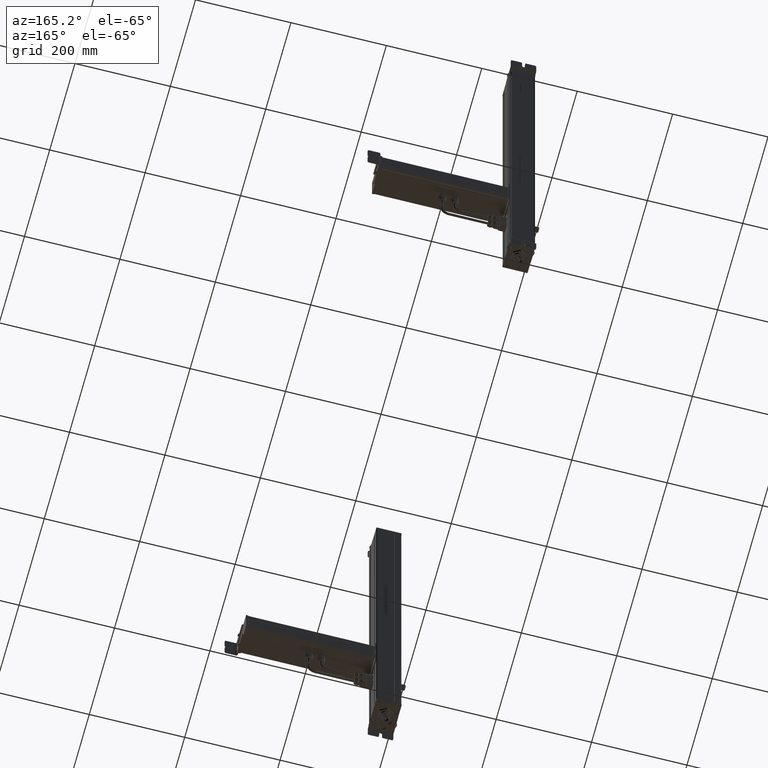
[diagram: clean part render]
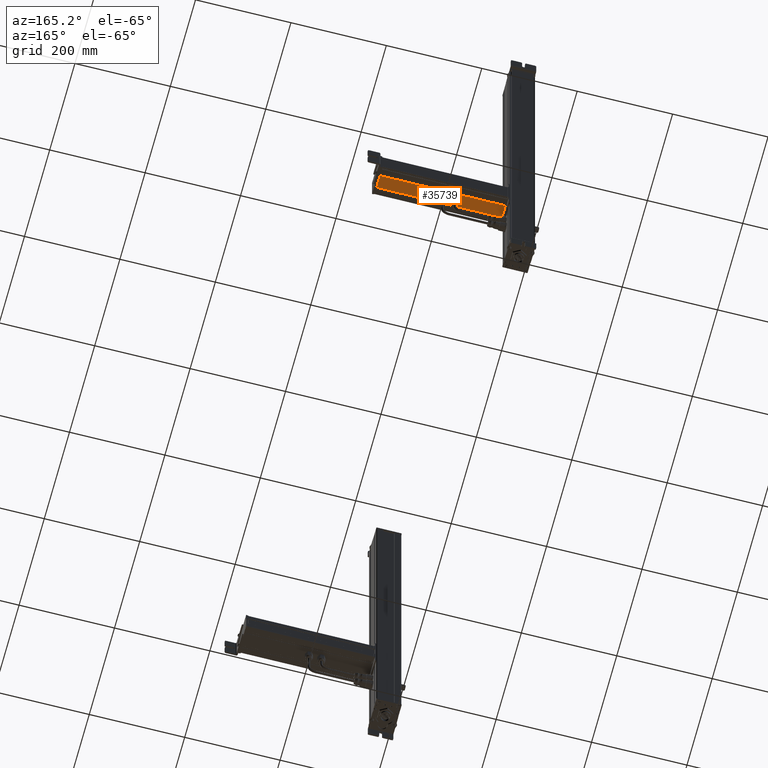
[diagram: same view with one face highlighted and labeled with its STEP entity id]
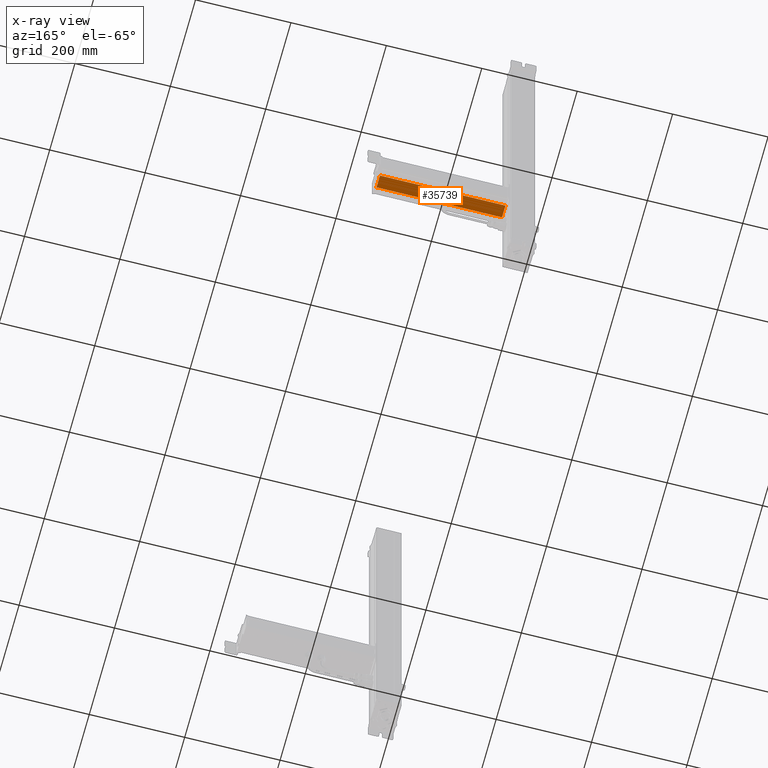
[diagram: x-ray of the same camera — body ghosted, the highlighted face saturated]
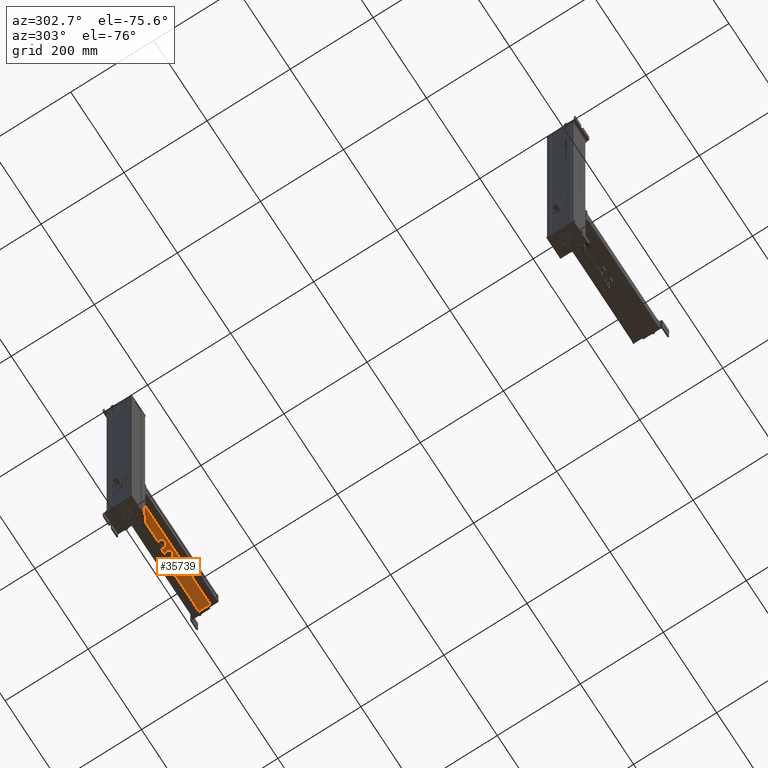
[diagram: same view with one face highlighted and labeled with its STEP entity id]
A machine part, auxiliary view. The second image highlights one B-rep face of the part: STEP entity #35739.
The next image is the same camera in x-ray: the body ghosted, the highlighted face saturated — about 0% of this face is hidden behind the body in this view.
A second angle (auxiliary view) of the same face is appended — the face is thin or edge-on in the first view.
In plain terms, the highlighted planar face has unit normal (-0, -0, -1).
Its self-contained STEP definition (entity closure, byte-faithful):
#32440=CARTESIAN_POINT('Vertex',(608.195556641,138.767790275,195.500000001)) ;
#32443=CARTESIAN_POINT('Line Origine',(608.195556641,152.38909214,195.500000001)) ;
#32447=CARTESIAN_POINT('Vertex',(608.195556641,166.010394005,195.500000001)) ;
#35175=CARTESIAN_POINT('Axis2P3D Location',(343.195556641,171.710394004,195.500000001)) ;
#35702=CARTESIAN_POINT('Line Origine',(476.695556641,138.767790275,195.500000001)) ;
#35706=CARTESIAN_POINT('Vertex',(345.195556641,138.767790275,195.500000001)) ;
#35721=CARTESIAN_POINT('Line Origine',(476.695556641,166.010394005,195.500000001)) ;
#35725=CARTESIAN_POINT('Vertex',(345.195556641,166.010394005,195.500000001)) ;
#35728=CARTESIAN_POINT('Line Origine',(345.195556641,152.38909214,195.500000001)) ;
#32444=DIRECTION('Vector Direction',(0.,1.,0.)) ;
#35176=DIRECTION('Axis2P3D Direction',(2.83276944882E-016,1.09048120098E-016,-1.)) ;
#35177=DIRECTION('Axis2P3D XDirection',(-1.09048120098E-016,1.,1.09048120098E-016)) ;
#35703=DIRECTION('Vector Direction',(1.,2.16134672475E-016,2.16134672475E-016)) ;
#35722=DIRECTION('Vector Direction',(1.,1.08067336237E-016,3.24202008712E-016)) ;
#35729=DIRECTION('Vector Direction',(0.,1.,0.)) ;
#35178=AXIS2_PLACEMENT_3D('Plane Axis2P3D',#35175,#35176,#35177) ;
#35734=ORIENTED_EDGE('',*,*,#35727,.T.) ;
#35735=ORIENTED_EDGE('',*,*,#32449,.F.) ;
#35736=ORIENTED_EDGE('',*,*,#35708,.F.) ;
#35737=ORIENTED_EDGE('',*,*,#35732,.T.) ;
#32445=VECTOR('Line Direction',#32444,1.) ;
#35704=VECTOR('Line Direction',#35703,1.) ;
#35723=VECTOR('Line Direction',#35722,1.) ;
#35730=VECTOR('Line Direction',#35729,1.) ;
#35739=ADVANCED_FACE('Body.23',(#35738),#35179,.T.) ;
#32449=EDGE_CURVE('',#32441,#32448,#32446,.T.) ;
#35708=EDGE_CURVE('',#35707,#32441,#35705,.T.) ;
#35727=EDGE_CURVE('',#35726,#32448,#35724,.T.) ;
#35732=EDGE_CURVE('',#35707,#35726,#35731,.T.) ;
#35733=EDGE_LOOP('',(#35734,#35735,#35736,#35737)) ;
#35738=FACE_OUTER_BOUND('',#35733,.T.) ;
#32446=LINE('Line',#32443,#32445) ;
#35705=LINE('Line',#35702,#35704) ;
#35724=LINE('Line',#35721,#35723) ;
#35731=LINE('Line',#35728,#35730) ;
#35179=PLANE('Plane',#35178) ;
#32441=VERTEX_POINT('',#32440) ;
#32448=VERTEX_POINT('',#32447) ;
#35707=VERTEX_POINT('',#35706) ;
#35726=VERTEX_POINT('',#35725) ;